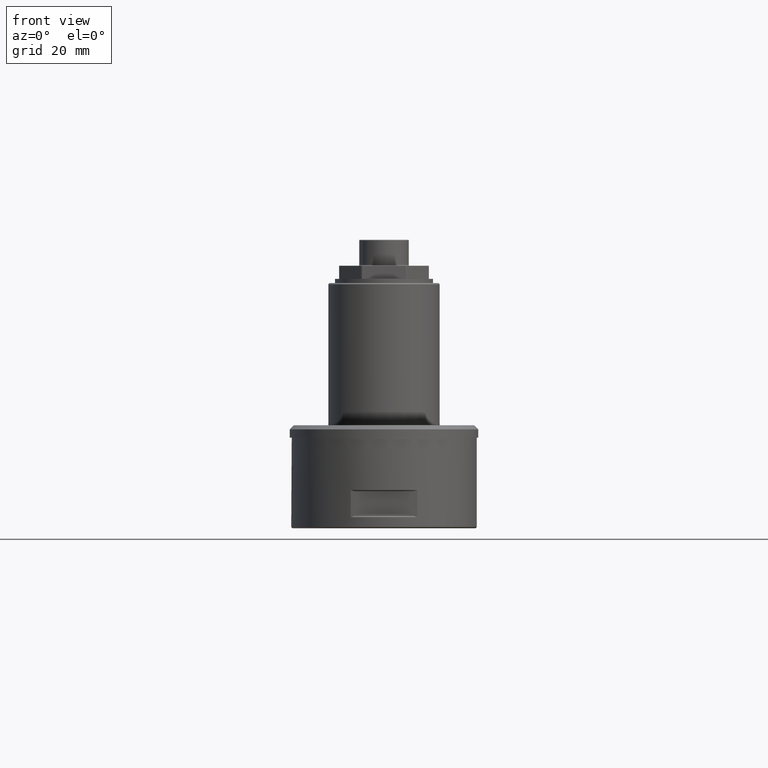
[diagram: clean part render]
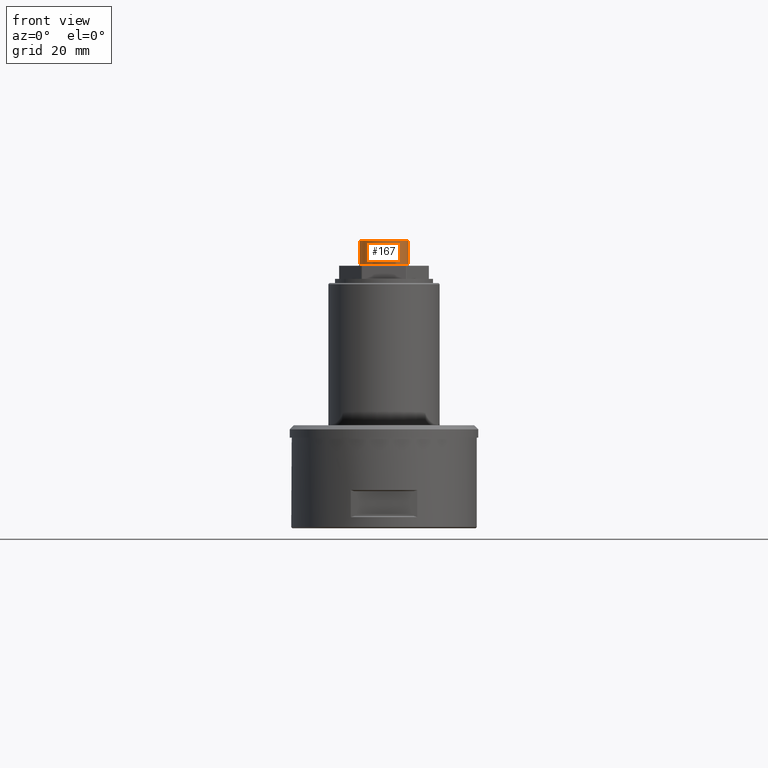
[diagram: same view with one face highlighted and labeled with its STEP entity id]
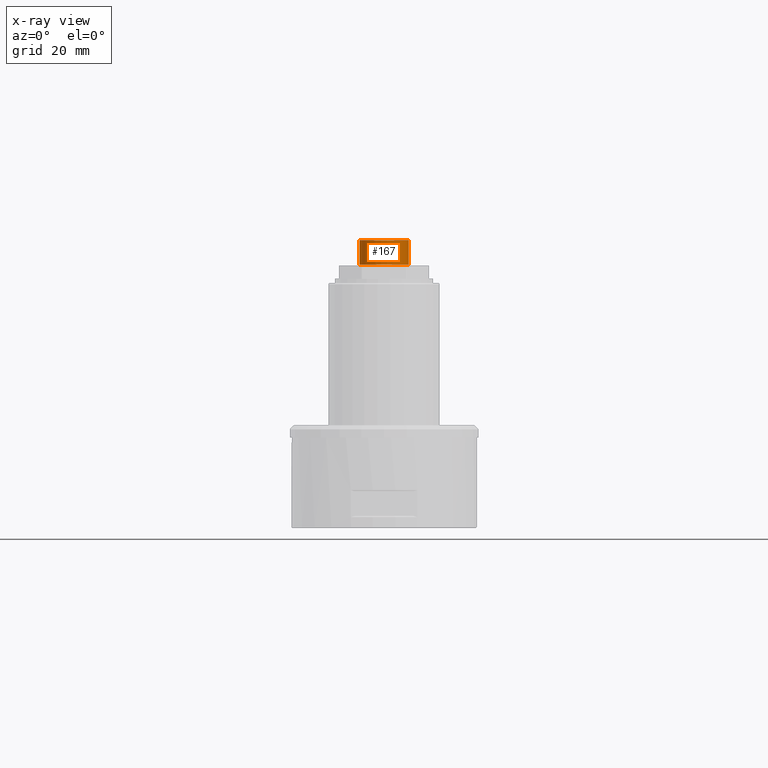
[diagram: x-ray of the same camera — body ghosted, the highlighted face saturated]
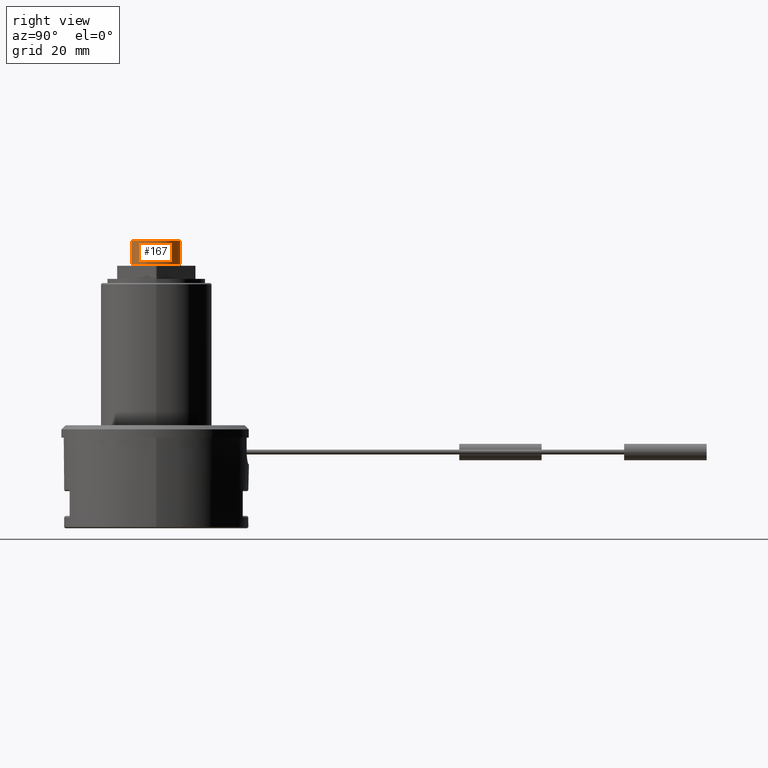
[diagram: same view with one face highlighted and labeled with its STEP entity id]
A machine part, front view. The second image highlights one B-rep face of the part: STEP entity #167.
The next image is the same camera in x-ray: the body ghosted, the highlighted face saturated — about 0% of this face is hidden behind the body in this view.
A second angle (right view) of the same face is appended — the face is thin or edge-on in the first view.
In plain terms, the highlighted cylindrical surface (bore or boss wall) has radius 6 mm, axis along (0, 0, 1).
Its self-contained STEP definition (entity closure, byte-faithful):
#95=CYLINDRICAL_SURFACE('',#1040,6.);
#167=ADVANCED_FACE('',(#352,#353),#95,.T.);
#352=FACE_BOUND('',#421,.T.);
#353=FACE_BOUND('',#422,.T.);
#421=EDGE_LOOP('',(#575));
#422=EDGE_LOOP('',(#576));
#575=ORIENTED_EDGE('',*,*,#878,.T.);
#576=ORIENTED_EDGE('',*,*,#879,.T.);
#778=VERTEX_POINT('',#1636);
#779=VERTEX_POINT('',#1638);
#878=EDGE_CURVE('',#778,#778,#956,.T.);
#879=EDGE_CURVE('',#779,#779,#957,.T.);
#956=CIRCLE('',#1038,6.);
#957=CIRCLE('',#1039,6.);
#1038=AXIS2_PLACEMENT_3D('',#1635,#1256,#1257);
#1039=AXIS2_PLACEMENT_3D('',#1637,#1258,#1259);
#1040=AXIS2_PLACEMENT_3D('',#1639,#1260,#1261);
#1256=DIRECTION('',(0.,0.,1.));
#1257=DIRECTION('',(-1.,0.,0.));
#1258=DIRECTION('',(0.,0.,-1.));
#1259=DIRECTION('',(-1.,0.,0.));
#1260=DIRECTION('',(0.,0.,1.));
#1261=DIRECTION('',(1.,0.,0.));
#1635=CARTESIAN_POINT('',(0.,0.,63.9000000000001));
#1636=CARTESIAN_POINT('',(-6.,0.,63.9000000000001));
#1637=CARTESIAN_POINT('',(0.,0.,69.8));
#1638=CARTESIAN_POINT('',(-6.,0.,69.8));
#1639=CARTESIAN_POINT('',(0.,0.,0.));